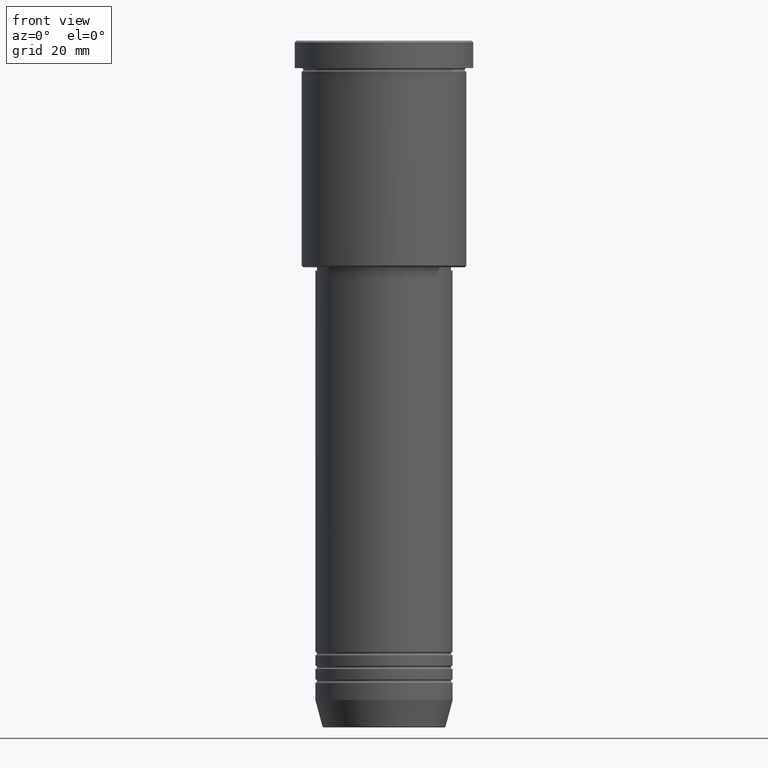
[diagram: clean part render]
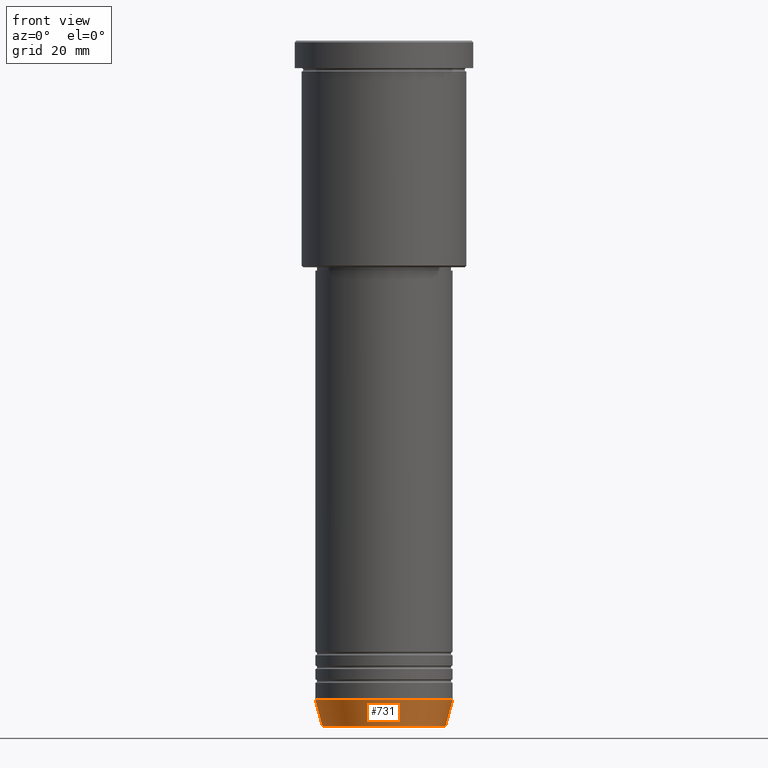
[diagram: same view with one face highlighted and labeled with its STEP entity id]
A machine part, front view. The second image highlights one B-rep face of the part: STEP entity #731.
In plain terms, the highlighted conical surface has half-angle 15 deg.
Its self-contained STEP definition (entity closure, byte-faithful):
#14 = DIRECTION ( 'NONE',  ( 1.000000000000000000, 0.000000000000000000, 0.000000000000000000 ) ) ;
#24 = DIRECTION ( 'NONE',  ( 1.000000000000000000, 0.000000000000000000, 0.000000000000000000 ) ) ;
#38 = EDGE_CURVE ( 'NONE', #941, #1020, #107, .T. ) ;
#89 = ORIENTED_EDGE ( 'NONE', *, *, #332, .T. ) ;
#107 = LINE ( 'NONE', #515, #848 ) ;
#137 = CARTESIAN_POINT ( 'NONE',  ( 20.00000000000000355, 0.000000000000000000, -192.0000000000000284 ) ) ;
#171 = VECTOR ( 'NONE', #238, 1000.000000000000000 ) ;
#192 = AXIS2_PLACEMENT_3D ( 'NONE', #822, #1007, #642 ) ;
#199 = CARTESIAN_POINT ( 'NONE',  ( 20.00000000000000355, 0.000000000000000000, -192.0000000000000284 ) ) ;
#238 = DIRECTION ( 'NONE',  ( 0.2588190451025213501, 0.000000000000000000, 0.9659258262890680902 ) ) ;
#275 = CARTESIAN_POINT ( 'NONE',  ( 0.000000000000000000, 0.000000000000000000, -192.0000000000000284 ) ) ;
#287 = AXIS2_PLACEMENT_3D ( 'NONE', #275, #935, #14 ) ;
#332 = EDGE_CURVE ( 'NONE', #941, #722, #892, .T. ) ;
#482 = CARTESIAN_POINT ( 'NONE',  ( 0.000000000000000000, 0.000000000000000000, -199.6294095225512990 ) ) ;
#515 = CARTESIAN_POINT ( 'NONE',  ( -20.00000000000000355, 2.449293598294706907E-15, -192.0000000000000284 ) ) ;
#543 = FACE_OUTER_BOUND ( 'NONE', #957, .T. ) ;
#642 = DIRECTION ( 'NONE',  ( 1.000000000000000000, 0.000000000000000000, 0.000000000000000000 ) ) ;
#713 = EDGE_CURVE ( 'NONE', #1020, #1145, #734, .T. ) ;
#722 = VERTEX_POINT ( 'NONE', #723 ) ;
#723 = CARTESIAN_POINT ( 'NONE',  ( 17.95570587970607690, 0.000000000000000000, -199.6294095225512990 ) ) ;
#731 = ADVANCED_FACE ( 'NONE', ( #543 ), #1098, .T. ) ;
#734 = CIRCLE ( 'NONE', #287, 20.00000000000000355 ) ;
#822 = CARTESIAN_POINT ( 'NONE',  ( 0.000000000000000000, 0.000000000000000000, -192.0000000000000284 ) ) ;
#848 = VECTOR ( 'NONE', #1163, 1000.000000000000000 ) ;
#869 = AXIS2_PLACEMENT_3D ( 'NONE', #482, #1112, #24 ) ;
#878 = ORIENTED_EDGE ( 'NONE', *, *, #713, .F. ) ;
#892 = CIRCLE ( 'NONE', #869, 17.95570587970607690 ) ;
#935 = DIRECTION ( 'NONE',  ( -0.000000000000000000, -0.000000000000000000, 1.000000000000000000 ) ) ;
#941 = VERTEX_POINT ( 'NONE', #1156 ) ;
#957 = EDGE_LOOP ( 'NONE', ( #1092, #89, #1048, #878 ) ) ;
#967 = CARTESIAN_POINT ( 'NONE',  ( -20.00000000000000355, 2.449293598294706907E-15, -192.0000000000000284 ) ) ;
#969 = EDGE_CURVE ( 'NONE', #722, #1145, #998, .T. ) ;
#998 = LINE ( 'NONE', #137, #171 ) ;
#1007 = DIRECTION ( 'NONE',  ( -0.000000000000000000, -0.000000000000000000, 1.000000000000000000 ) ) ;
#1020 = VERTEX_POINT ( 'NONE', #967 ) ;
#1048 = ORIENTED_EDGE ( 'NONE', *, *, #969, .T. ) ;
#1092 = ORIENTED_EDGE ( 'NONE', *, *, #38, .F. ) ;
#1098 = CONICAL_SURFACE ( 'NONE', #192, 20.00000000000000355, 0.2617993877991500740 ) ;
#1112 = DIRECTION ( 'NONE',  ( -0.000000000000000000, -0.000000000000000000, 1.000000000000000000 ) ) ;
#1145 = VERTEX_POINT ( 'NONE', #199 ) ;
#1156 = CARTESIAN_POINT ( 'NONE',  ( -17.95570587970607690, 2.324116685748021371E-15, -199.6294095225512990 ) ) ;
#1163 = DIRECTION ( 'NONE',  ( -0.2588190451025213501, 3.169619151431772337E-17, 0.9659258262890680902 ) ) ;